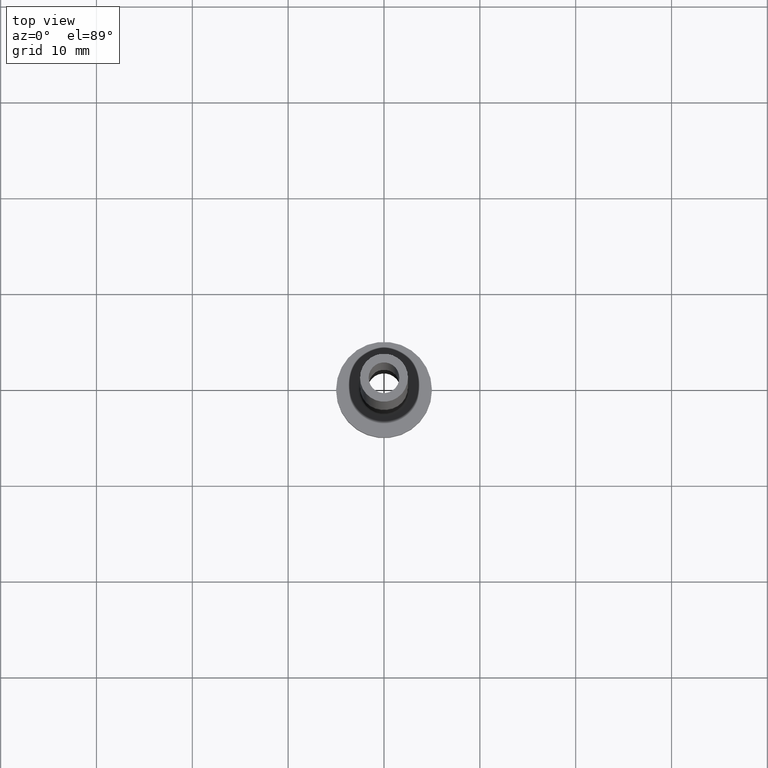
[diagram: clean part render]
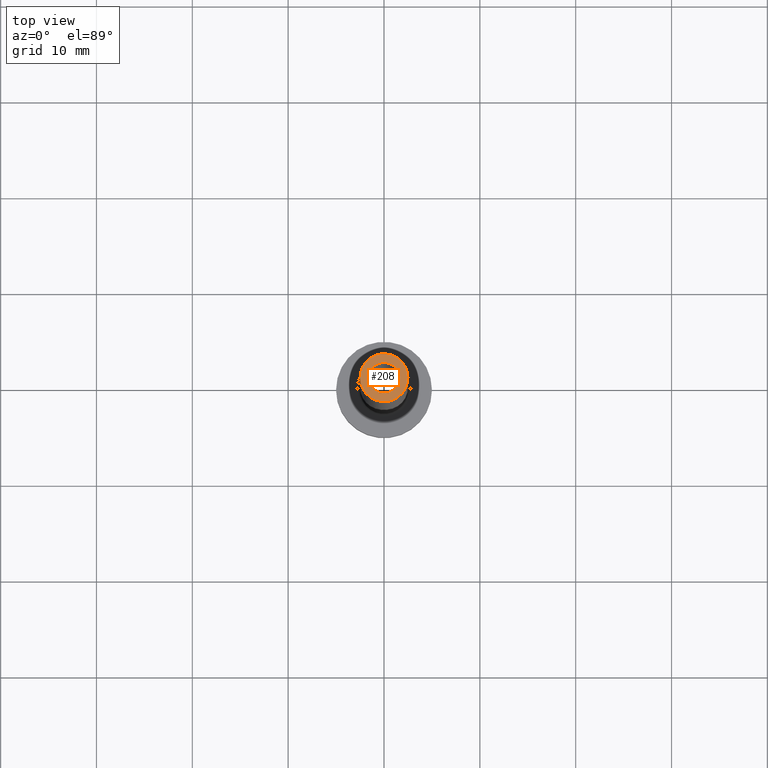
[diagram: same view with one face highlighted and labeled with its STEP entity id]
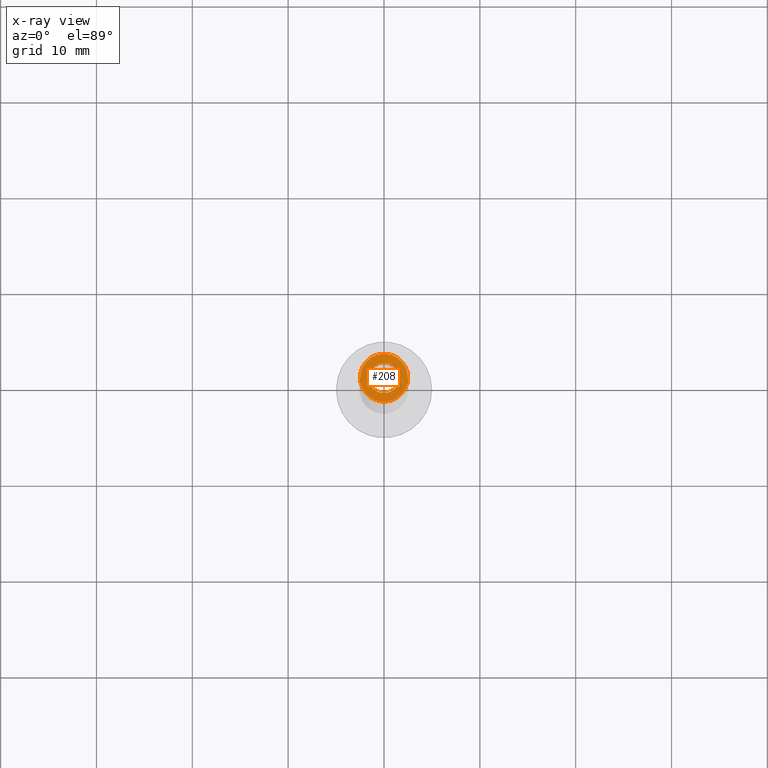
[diagram: x-ray of the same camera — body ghosted, the highlighted face saturated]
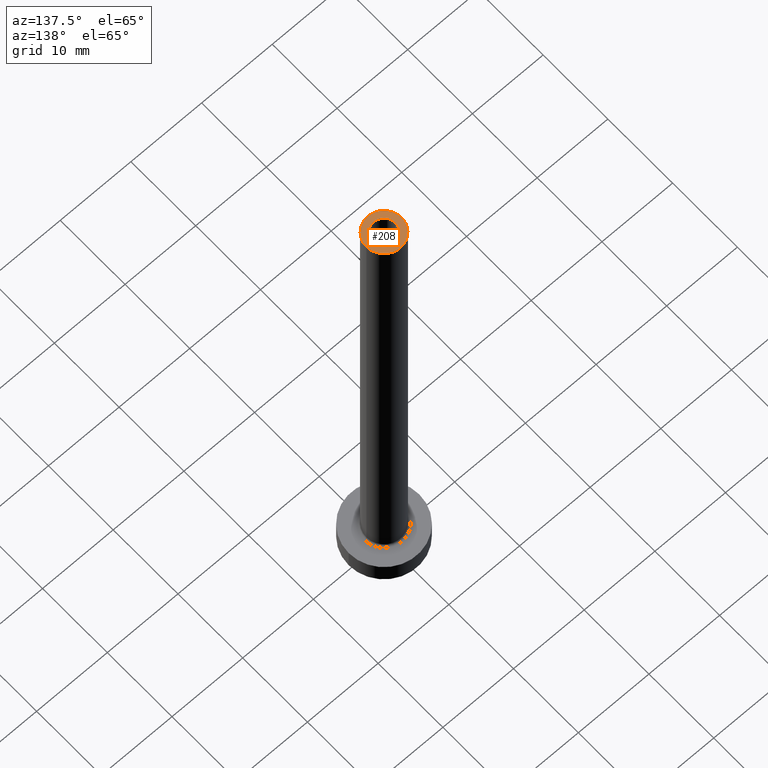
[diagram: same view with one face highlighted and labeled with its STEP entity id]
A machine part, top view. The second image highlights one B-rep face of the part: STEP entity #208.
The next image is the same camera in x-ray: the body ghosted, the highlighted face saturated — about 0% of this face is hidden behind the body in this view.
A second angle (auxiliary view) of the same face is appended — the face is thin or edge-on in the first view.
In plain terms, the highlighted planar face has unit normal (0, 0, 1).
Its self-contained STEP definition (entity closure, byte-faithful):
#6 = AXIS2_PLACEMENT_3D ( 'NONE', #241, #185, #417 ) ;
#7 = EDGE_CURVE ( 'NONE', #86, #35, #331, .T. ) ;
#10 = CIRCLE ( 'NONE', #191, 1.600000000000000089 ) ;
#14 = AXIS2_PLACEMENT_3D ( 'NONE', #171, #165, #310 ) ;
#27 = FACE_OUTER_BOUND ( 'NONE', #33, .T. ) ;
#33 = EDGE_LOOP ( 'NONE', ( #80, #41 ) ) ;
#35 = VERTEX_POINT ( 'NONE', #140 ) ;
#41 = ORIENTED_EDGE ( 'NONE', *, *, #319, .T. ) ;
#45 = VERTEX_POINT ( 'NONE', #146 ) ;
#80 = ORIENTED_EDGE ( 'NONE', *, *, #88, .T. ) ;
#82 = DIRECTION ( 'NONE',  ( 0.000000000000000000, 0.000000000000000000, 1.000000000000000000 ) ) ;
#86 = VERTEX_POINT ( 'NONE', #364 ) ;
#88 = EDGE_CURVE ( 'NONE', #422, #45, #265, .T. ) ;
#93 = DIRECTION ( 'NONE',  ( 1.000000000000000000, 0.000000000000000000, 0.000000000000000000 ) ) ;
#100 = CARTESIAN_POINT ( 'NONE',  ( 0.000000000000000000, 0.000000000000000000, 75.00000000000000000 ) ) ;
#140 = CARTESIAN_POINT ( 'NONE',  ( -1.600000000000000089, 0.000000000000000000, 75.00000000000000000 ) ) ;
#146 = CARTESIAN_POINT ( 'NONE',  ( 2.500000000000000000, 3.061616997868383141E-16, 75.00000000000000000 ) ) ;
#165 = DIRECTION ( 'NONE',  ( 0.000000000000000000, 0.000000000000000000, 1.000000000000000000 ) ) ;
#171 = CARTESIAN_POINT ( 'NONE',  ( 0.000000000000000000, 0.000000000000000000, 75.00000000000000000 ) ) ;
#181 = EDGE_CURVE ( 'NONE', #35, #86, #10, .T. ) ;
#185 = DIRECTION ( 'NONE',  ( 0.000000000000000000, 0.000000000000000000, 1.000000000000000000 ) ) ;
#191 = AXIS2_PLACEMENT_3D ( 'NONE', #438, #82, #435 ) ;
#203 = ORIENTED_EDGE ( 'NONE', *, *, #181, .F. ) ;
#208 = ADVANCED_FACE ( 'NONE', ( #307, #27 ), #446, .T. ) ;
#233 = DIRECTION ( 'NONE',  ( 0.000000000000000000, 0.000000000000000000, 1.000000000000000000 ) ) ;
#241 = CARTESIAN_POINT ( 'NONE',  ( 0.000000000000000000, 0.000000000000000000, 75.00000000000000000 ) ) ;
#255 = CIRCLE ( 'NONE', #439, 2.500000000000000000 ) ;
#257 = AXIS2_PLACEMENT_3D ( 'NONE', #289, #431, #459 ) ;
#265 = CIRCLE ( 'NONE', #6, 2.500000000000000000 ) ;
#286 = EDGE_LOOP ( 'NONE', ( #203, #427 ) ) ;
#289 = CARTESIAN_POINT ( 'NONE',  ( 0.000000000000000000, 0.000000000000000000, 75.00000000000000000 ) ) ;
#307 = FACE_BOUND ( 'NONE', #286, .T. ) ;
#310 = DIRECTION ( 'NONE',  ( 1.000000000000000000, 0.000000000000000000, -0.000000000000000000 ) ) ;
#319 = EDGE_CURVE ( 'NONE', #45, #422, #255, .T. ) ;
#331 = CIRCLE ( 'NONE', #257, 1.600000000000000089 ) ;
#350 = CARTESIAN_POINT ( 'NONE',  ( -2.500000000000000000, 0.000000000000000000, 75.00000000000000000 ) ) ;
#364 = CARTESIAN_POINT ( 'NONE',  ( 1.600000000000000089, 1.959434878635764737E-16, 75.00000000000000000 ) ) ;
#417 = DIRECTION ( 'NONE',  ( 1.000000000000000000, 0.000000000000000000, 0.000000000000000000 ) ) ;
#422 = VERTEX_POINT ( 'NONE', #350 ) ;
#427 = ORIENTED_EDGE ( 'NONE', *, *, #7, .F. ) ;
#431 = DIRECTION ( 'NONE',  ( 0.000000000000000000, 0.000000000000000000, 1.000000000000000000 ) ) ;
#435 = DIRECTION ( 'NONE',  ( 1.000000000000000000, 0.000000000000000000, 0.000000000000000000 ) ) ;
#438 = CARTESIAN_POINT ( 'NONE',  ( 0.000000000000000000, 0.000000000000000000, 75.00000000000000000 ) ) ;
#439 = AXIS2_PLACEMENT_3D ( 'NONE', #100, #233, #93 ) ;
#446 = PLANE ( 'NONE',  #14 ) ;
#459 = DIRECTION ( 'NONE',  ( 1.000000000000000000, 0.000000000000000000, 0.000000000000000000 ) ) ;